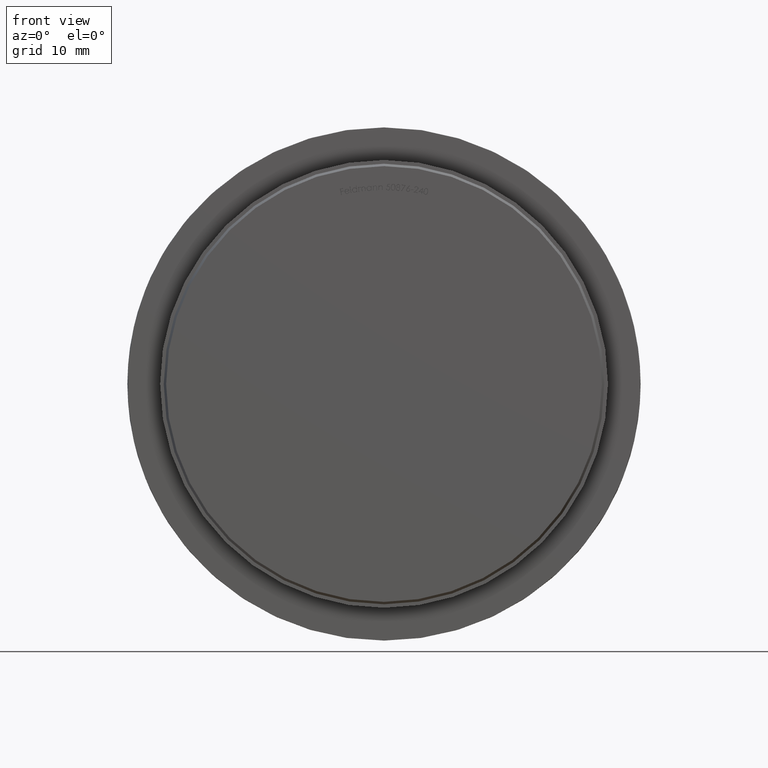
[diagram: clean part render]
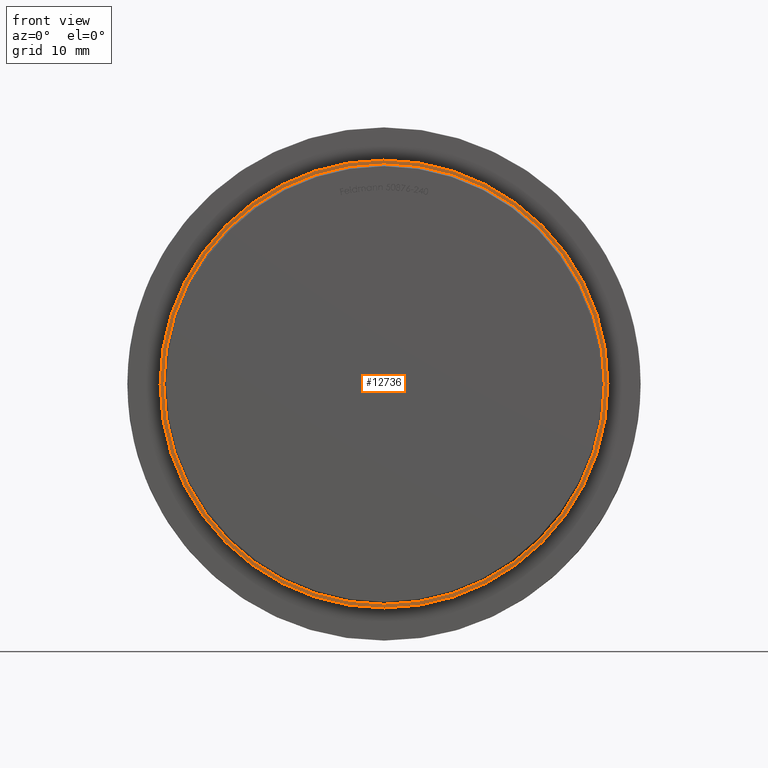
[diagram: same view with one face highlighted and labeled with its STEP entity id]
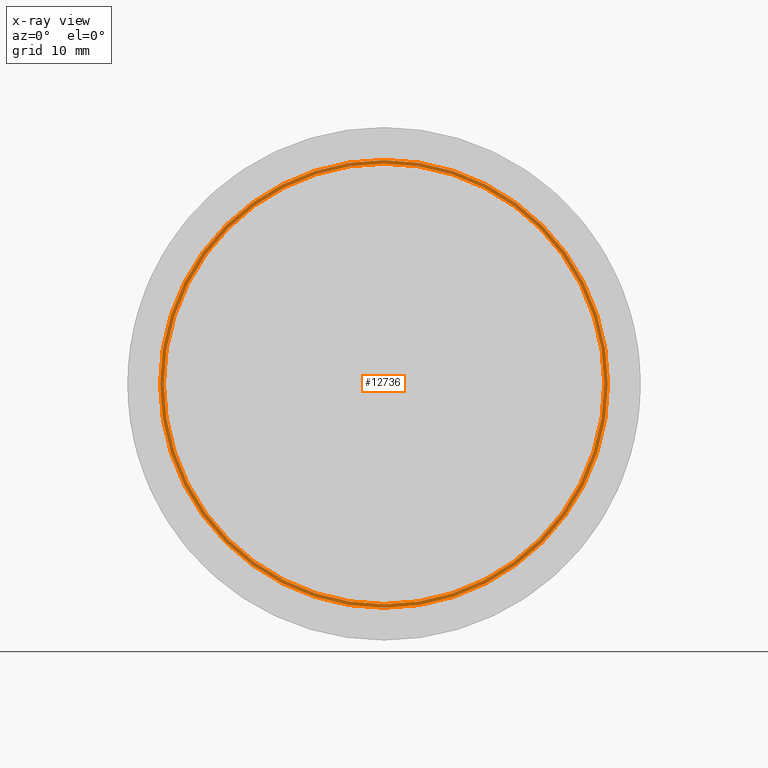
[diagram: x-ray of the same camera — body ghosted, the highlighted face saturated]
A machine part, front view. The second image highlights one B-rep face of the part: STEP entity #12736.
The next image is the same camera in x-ray: the body ghosted, the highlighted face saturated — about 0% of this face is hidden behind the body in this view.
In plain terms, the highlighted planar face has unit normal (0, 1, 0).
Its self-contained STEP definition (entity closure, byte-faithful):
#156 = PLANE ( 'NONE',  #9161 ) ;
#536 = CIRCLE ( 'NONE', #4127, 18.50000000000000000 ) ;
#720 = CARTESIAN_POINT ( 'NONE',  ( 2.265596578422603400E-015, 2.000000000000000000, 18.50000000000000000 ) ) ;
#875 = EDGE_CURVE ( 'NONE', #11258, #11644, #1908, .T. ) ;
#1048 = EDGE_LOOP ( 'NONE', ( #12633, #11812 ) ) ;
#1256 = CARTESIAN_POINT ( 'NONE',  ( 0.0000000000000000000, 2.000000000000000000, 0.0000000000000000000 ) ) ;
#1274 = ORIENTED_EDGE ( 'NONE', *, *, #10342, .F. ) ;
#1908 = CIRCLE ( 'NONE', #6342, 18.50000000000000000 ) ;
#2115 = CARTESIAN_POINT ( 'NONE',  ( 0.0000000000000000000, 2.000000000000000000, 0.0000000000000000000 ) ) ;
#2246 = CIRCLE ( 'NONE', #10190, 18.19999999999999900 ) ;
#2266 = CARTESIAN_POINT ( 'NONE',  ( 0.0000000000000000000, 2.000000000000000000, 0.0000000000000000000 ) ) ;
#2303 = VERTEX_POINT ( 'NONE', #5364 ) ;
#3145 = DIRECTION ( 'NONE',  ( 0.0000000000000000000, 1.000000000000000000, 0.0000000000000000000 ) ) ;
#3813 = ORIENTED_EDGE ( 'NONE', *, *, #6301, .F. ) ;
#4127 = AXIS2_PLACEMENT_3D ( 'NONE', #2115, #3145, #12653 ) ;
#4252 = EDGE_LOOP ( 'NONE', ( #3813, #1274 ) ) ;
#4257 = DIRECTION ( 'NONE',  ( 0.0000000000000000000, 0.0000000000000000000, 1.000000000000000000 ) ) ;
#4516 = FACE_BOUND ( 'NONE', #4252, .T. ) ;
#4722 = CIRCLE ( 'NONE', #8988, 18.19999999999999900 ) ;
#5344 = DIRECTION ( 'NONE',  ( 0.0000000000000000000, 0.0000000000000000000, 1.000000000000000000 ) ) ;
#5364 = CARTESIAN_POINT ( 'NONE',  ( 0.0000000000000000000, 2.000000000000000000, 18.19999999999999900 ) ) ;
#6301 = EDGE_CURVE ( 'NONE', #2303, #8444, #2246, .T. ) ;
#6342 = AXIS2_PLACEMENT_3D ( 'NONE', #10255, #8367, #4257 ) ;
#8278 = DIRECTION ( 'NONE',  ( 0.0000000000000000000, 1.000000000000000000, 0.0000000000000000000 ) ) ;
#8367 = DIRECTION ( 'NONE',  ( 0.0000000000000000000, 1.000000000000000000, 0.0000000000000000000 ) ) ;
#8444 = VERTEX_POINT ( 'NONE', #13235 ) ;
#8988 = AXIS2_PLACEMENT_3D ( 'NONE', #9355, #10475, #5344 ) ;
#9161 = AXIS2_PLACEMENT_3D ( 'NONE', #1256, #8278, #11426 ) ;
#9236 = DIRECTION ( 'NONE',  ( 0.0000000000000000000, 0.0000000000000000000, 1.000000000000000000 ) ) ;
#9355 = CARTESIAN_POINT ( 'NONE',  ( 0.0000000000000000000, 2.000000000000000000, 0.0000000000000000000 ) ) ;
#9366 = DIRECTION ( 'NONE',  ( -0.0000000000000000000, -1.000000000000000000, -0.0000000000000000000 ) ) ;
#10190 = AXIS2_PLACEMENT_3D ( 'NONE', #2266, #9366, #9236 ) ;
#10255 = CARTESIAN_POINT ( 'NONE',  ( 0.0000000000000000000, 2.000000000000000000, 0.0000000000000000000 ) ) ;
#10342 = EDGE_CURVE ( 'NONE', #8444, #2303, #4722, .T. ) ;
#10475 = DIRECTION ( 'NONE',  ( -0.0000000000000000000, -1.000000000000000000, -0.0000000000000000000 ) ) ;
#11258 = VERTEX_POINT ( 'NONE', #720 ) ;
#11426 = DIRECTION ( 'NONE',  ( 0.0000000000000000000, -0.0000000000000000000, 1.000000000000000000 ) ) ;
#11644 = VERTEX_POINT ( 'NONE', #12629 ) ;
#11812 = ORIENTED_EDGE ( 'NONE', *, *, #875, .F. ) ;
#12518 = FACE_OUTER_BOUND ( 'NONE', #1048, .T. ) ;
#12629 = CARTESIAN_POINT ( 'NONE',  ( 0.0000000000000000000, 2.000000000000000000, -18.50000000000000000 ) ) ;
#12633 = ORIENTED_EDGE ( 'NONE', *, *, #12746, .F. ) ;
#12653 = DIRECTION ( 'NONE',  ( 0.0000000000000000000, 0.0000000000000000000, 1.000000000000000000 ) ) ;
#12736 = ADVANCED_FACE ( 'NONE', ( #4516, #12518 ), #156, .F. ) ;
#12746 = EDGE_CURVE ( 'NONE', #11644, #11258, #536, .T. ) ;
#13235 = CARTESIAN_POINT ( 'NONE',  ( 2.228857174448182900E-015, 2.000000000000000000, -18.19999999999999900 ) ) ;